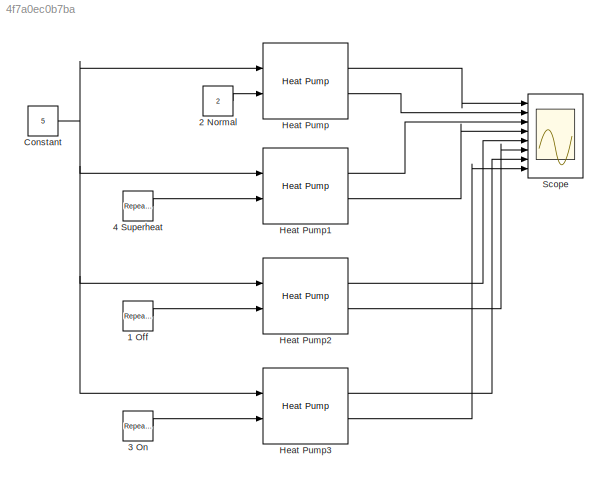
MODEL slx_4f7a0ec0b7ba
KIND model
CONFIG AbsTol = auto
CONFIG EnableMultiTasking = off
CONFIG FixedStep = 0.05
CONFIG MaxStep = auto
CONFIG MinStep = auto
CONFIG RelTol = 1e-3
CONFIG SampleTimeConstraint = Unconstrained
CONFIG SolverName = ode1be
CONFIG StartTime = 0.0
CONFIG StopTime = 10.0
BLOCK [Reference] 1 Off  REF=simulink/Sources/Repeating
Sequence
Stair
  Ports = [0, 1]
  SourceBlock = simulink/Sources/Repeating\nSequence\nStair
  SourceProductBaseCode = SL
  SourceType = Repeating Sequence Stair
BLOCK [Constant] 2 Normal
  Value = 2
BLOCK [Reference] 3 On  REF=simulink/Sources/Repeating
Sequence
Stair
  Ports = [0, 1]
  SourceBlock = simulink/Sources/Repeating\nSequence\nStair
  SourceProductBaseCode = SL
  SourceType = Repeating Sequence Stair
BLOCK [Reference] 4 Superheat  REF=simulink/Sources/Repeating
Sequence
Stair
  Ports = [0, 1]
  SourceBlock = simulink/Sources/Repeating\nSequence\nStair
  SourceProductBaseCode = SL
  SourceType = Repeating Sequence Stair
BLOCK [Constant] Constant
  Value = 5
BLOCK [Reference] Heat Pump  REF=kif2/Heat Pump  (lib defined in slx_8baa95f9d146)
  Ports = [2, 2]
  SourceBlock = kif2/Heat Pump
  SourceProductName = KIF2 Library
  SourceType = Heat Pump (Three Phase)
BLOCK [Reference] Heat Pump1  REF=kif2/Heat Pump  (lib defined in slx_8baa95f9d146)
  Ports = [2, 2]
  SourceBlock = kif2/Heat Pump
  SourceProductName = KIF2 Library
  SourceType = Heat Pump (Three Phase)
BLOCK [Reference] Heat Pump2  REF=kif2/Heat Pump  (lib defined in slx_8baa95f9d146)
  Ports = [2, 2]
  SourceBlock = kif2/Heat Pump
  SourceProductName = KIF2 Library
  SourceType = Heat Pump (Three Phase)
BLOCK [Reference] Heat Pump3  REF=kif2/Heat Pump  (lib defined in slx_8baa95f9d146)
  Ports = [2, 2]
  SourceBlock = kif2/Heat Pump
  SourceProductName = KIF2 Library
  SourceType = Heat Pump (Three Phase)
BLOCK [Scope] Scope
  Floating = off
  NumInputPorts = 8
  Ports = [8]
  ScopeSpecificationString = Simulink.scopes.TimeScopeBlockCfg('CurrentConfiguration', extmgr.ConfigurationSet(extmgr.Configuration('Core','General UI',true),extmgr.Configuration('Core','Source UI',true),extmgr.Configuration('Sources','WiredSimulink',true,'DataLoggingVariableName','TemP','DataLogging',true),extmgr.Configuration('Visuals','Time Domain',true,'SerializedDisplays',{struct('MinYLimReal','-427.5','MaxYLimReal','384...<+6377ch>
LINE 1 Off:1 -> Heat Pump2:2
LINE 2 Normal:1 -> Heat Pump:2
LINE 3 On:1 -> Heat Pump3:2
LINE 4 Superheat:1 -> Heat Pump1:2
NET Constant:1 -> Heat Pump1:1, Heat Pump2:1, Heat Pump3:1, Heat Pump:1
LINE Heat Pump1:1 -> Scope:3
LINE Heat Pump1:2 -> Scope:4
LINE Heat Pump2:1 -> Scope:5
LINE Heat Pump2:2 -> Scope:6
LINE Heat Pump3:1 -> Scope:7
LINE Heat Pump3:2 -> Scope:8
LINE Heat Pump:1 -> Scope:1
LINE Heat Pump:2 -> Scope:2
note: NET lines group one-source signal fan-out (src -> all destinations, sorted); 1:1 wires keep LINE
